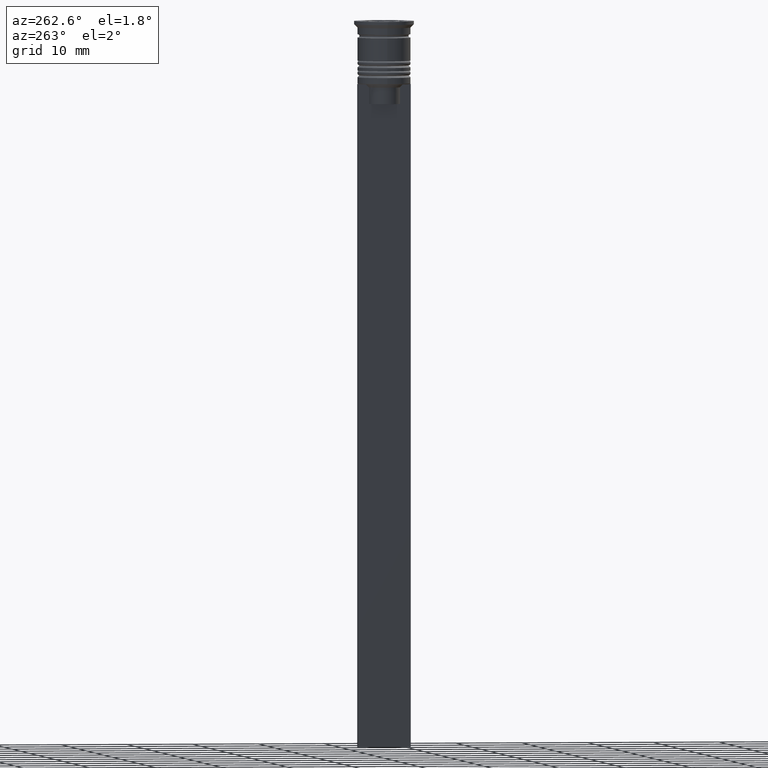
[diagram: clean part render]
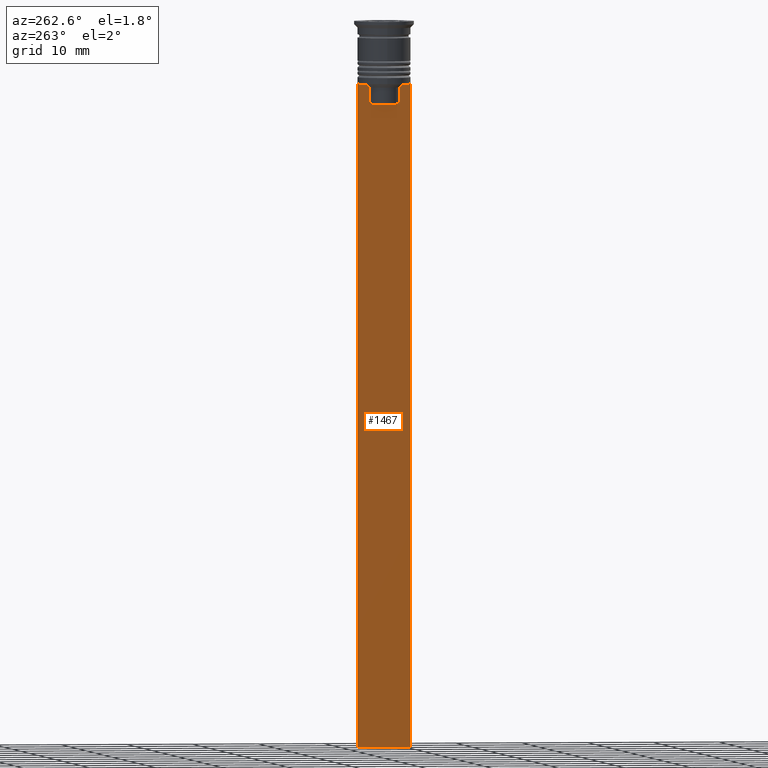
[diagram: same view with one face highlighted and labeled with its STEP entity id]
A machine part, auxiliary view. The second image highlights one B-rep face of the part: STEP entity #1467.
In plain terms, the highlighted planar face has unit normal (-1, 0, 0).
Its self-contained STEP definition (entity closure, byte-faithful):
#56 = CARTESIAN_POINT ( 'NONE',  ( -0.5000000000000000000, 2.517407211010871393, -9.833663366238582171 ) ) ;
#62 = EDGE_CURVE ( 'NONE', #1665, #465, #709, .T. ) ;
#87 = VERTEX_POINT ( 'NONE', #1300 ) ;
#122 = CARTESIAN_POINT ( 'NONE',  ( -0.5000000000000000000, -2.347338918861097135, -10.00000000000000000 ) ) ;
#142 = ORIENTED_EDGE ( 'NONE', *, *, #226, .F. ) ;
#157 = CARTESIAN_POINT ( 'NONE',  ( -0.5000000000000000000, -3.867815921162741422, -9.500000000000000000 ) ) ;
#162 = CARTESIAN_POINT ( 'NONE',  ( -0.5000000000000000000, 2.347338918861097135, -12.50000000000000000 ) ) ;
#193 = EDGE_LOOP ( 'NONE', ( #2430, #2476, #1920, #2488, #797, #1464, #1823, #1399, #1894, #2301, #2456, #142 ) ) ;
#204 = CARTESIAN_POINT ( 'NONE',  ( -0.5000000000000000000, -4.000000000000000000, -9.500000000000000000 ) ) ;
#226 = EDGE_CURVE ( 'NONE', #271, #1816, #2373, .T. ) ;
#235 = LINE ( 'NONE', #1626, #1183 ) ;
#247 = AXIS2_PLACEMENT_3D ( 'NONE', #903, #1303, #2078 ) ;
#271 = VERTEX_POINT ( 'NONE', #1484 ) ;
#272 = DIRECTION ( 'NONE',  ( 0.000000000000000000, -1.000000000000000000, 0.000000000000000000 ) ) ;
#298 = CARTESIAN_POINT ( 'NONE',  ( -0.5000000000000000000, -4.000000000000000000, -9.500000000000000000 ) ) ;
#318 = DIRECTION ( 'NONE',  ( 0.000000000000000000, -1.000000000000000000, 0.000000000000000000 ) ) ;
#389 = B_SPLINE_CURVE_WITH_KNOTS ( 'NONE', 3,
 ( #122, #2487, #1537, #1096 ),
 .UNSPECIFIED., .F., .F.,
 ( 4, 4 ),
 ( 0.01178336557230038641, 0.01249758354768160454 ),
 .UNSPECIFIED. ) ;
#397 = DIRECTION ( 'NONE',  ( -0.000000000000000000, -0.000000000000000000, 1.000000000000000000 ) ) ;
#416 = LINE ( 'NONE', #1358, #1154 ) ;
#424 = CARTESIAN_POINT ( 'NONE',  ( -0.5000000000000000000, 2.687094542495897631, -9.666938847453439010 ) ) ;
#441 = EDGE_CURVE ( 'NONE', #713, #662, #416, .T. ) ;
#465 = VERTEX_POINT ( 'NONE', #1370 ) ;
#491 = VECTOR ( 'NONE', #2493, 1000.000000000000000 ) ;
#552 = CARTESIAN_POINT ( 'NONE',  ( -0.5000000000000000000, -4.000000000000000000, -9.500000000000000000 ) ) ;
#564 = CARTESIAN_POINT ( 'NONE',  ( -0.5000000000000000000, -4.000000000000000000, -9.500000000000000000 ) ) ;
#568 = EDGE_CURVE ( 'NONE', #1245, #271, #885, .T. ) ;
#586 = CARTESIAN_POINT ( 'NONE',  ( -0.5000000000000000000, -2.347338918861097135, 0.000000000000000000 ) ) ;
#593 = CARTESIAN_POINT ( 'NONE',  ( -0.5000000000000000000, 2.856571371417138572, -9.500000000000000000 ) ) ;
#632 = EDGE_CURVE ( 'NONE', #662, #465, #1533, .T. ) ;
#662 = VERTEX_POINT ( 'NONE', #2312 ) ;
#665 = FACE_OUTER_BOUND ( 'NONE', #193, .T. ) ;
#704 = VECTOR ( 'NONE', #980, 1000.000000000000000 ) ;
#709 = LINE ( 'NONE', #1079, #982 ) ;
#713 = VERTEX_POINT ( 'NONE', #564 ) ;
#797 = ORIENTED_EDGE ( 'NONE', *, *, #632, .F. ) ;
#877 = PLANE ( 'NONE',  #247 ) ;
#885 = B_SPLINE_CURVE_WITH_KNOTS ( 'NONE', 3,
 ( #1983, #424, #56, #2383 ),
 .UNSPECIFIED., .F., .F.,
 ( 4, 4 ),
 ( 0.004956812174141195064, 0.005670477137898153989 ),
 .UNSPECIFIED. ) ;
#898 = EDGE_CURVE ( 'NONE', #1986, #968, #1564, .T. ) ;
#903 = CARTESIAN_POINT ( 'NONE',  ( -0.5000000000000000000, -4.000000000000000000, -1.437742251701450202 ) ) ;
#968 = VERTEX_POINT ( 'NONE', #2416 ) ;
#980 = DIRECTION ( 'NONE',  ( 0.000000000000000000, -1.000000000000000000, 0.000000000000000000 ) ) ;
#982 = VECTOR ( 'NONE', #2063, 1000.000000000000000 ) ;
#984 = VECTOR ( 'NONE', #2012, 1000.000000000000000 ) ;
#1079 = CARTESIAN_POINT ( 'NONE',  ( -0.5000000000000000000, 4.000000000000000000, -1.437742251701450202 ) ) ;
#1096 = CARTESIAN_POINT ( 'NONE',  ( -0.5000000000000000000, -2.856571371417138572, -9.500000000000000000 ) ) ;
#1154 = VECTOR ( 'NONE', #2537, 1000.000000000000000 ) ;
#1156 = LINE ( 'NONE', #1672, #1283 ) ;
#1169 = EDGE_CURVE ( 'NONE', #87, #1245, #1688, .T. ) ;
#1183 = VECTOR ( 'NONE', #272, 1000.000000000000000 ) ;
#1194 = EDGE_CURVE ( 'NONE', #2411, #2314, #1763, .T. ) ;
#1236 = CARTESIAN_POINT ( 'NONE',  ( -0.5000000000000000000, 2.347338918861097135, 0.000000000000000000 ) ) ;
#1245 = VERTEX_POINT ( 'NONE', #593 ) ;
#1283 = VECTOR ( 'NONE', #318, 1000.000000000000000 ) ;
#1300 = CARTESIAN_POINT ( 'NONE',  ( -0.5000000000000000000, 3.867815921162741422, -9.500000000000000000 ) ) ;
#1303 = DIRECTION ( 'NONE',  ( -1.000000000000000000, 0.000000000000000000, 0.000000000000000000 ) ) ;
#1321 = VECTOR ( 'NONE', #397, 1000.000000000000000 ) ;
#1358 = CARTESIAN_POINT ( 'NONE',  ( -0.5000000000000000000, -4.000000000000000000, -1.437742251701450202 ) ) ;
#1370 = CARTESIAN_POINT ( 'NONE',  ( -0.5000000000000000000, 4.000000000000000000, -109.5000000000000000 ) ) ;
#1380 = EDGE_CURVE ( 'NONE', #2314, #713, #2097, .T. ) ;
#1396 = VECTOR ( 'NONE', #2271, 1000.000000000000000 ) ;
#1399 = ORIENTED_EDGE ( 'NONE', *, *, #1194, .F. ) ;
#1464 = ORIENTED_EDGE ( 'NONE', *, *, #441, .F. ) ;
#1467 = ADVANCED_FACE ( 'NONE', ( #665 ), #877, .T. ) ;
#1484 = CARTESIAN_POINT ( 'NONE',  ( -0.5000000000000000000, 2.347338918861097135, -10.00000000000000000 ) ) ;
#1533 = LINE ( 'NONE', #1718, #491 ) ;
#1537 = CARTESIAN_POINT ( 'NONE',  ( -0.5000000000000000000, -2.687095498514037839, -9.666937905752043037 ) ) ;
#1564 = LINE ( 'NONE', #586, #1321 ) ;
#1626 = CARTESIAN_POINT ( 'NONE',  ( -0.5000000000000000000, 2.399999999999996803, -12.50000000000000000 ) ) ;
#1665 = VERTEX_POINT ( 'NONE', #2420 ) ;
#1672 = CARTESIAN_POINT ( 'NONE',  ( -0.5000000000000000000, -4.000000000000000000, -9.500000000000000000 ) ) ;
#1688 = LINE ( 'NONE', #552, #2372 ) ;
#1718 = CARTESIAN_POINT ( 'NONE',  ( -0.5000000000000000000, -4.000000000000000000, -109.5000000000000000 ) ) ;
#1729 = DIRECTION ( 'NONE',  ( 0.000000000000000000, -1.000000000000000000, 0.000000000000000000 ) ) ;
#1763 = LINE ( 'NONE', #204, #704 ) ;
#1816 = VERTEX_POINT ( 'NONE', #162 ) ;
#1823 = ORIENTED_EDGE ( 'NONE', *, *, #1380, .F. ) ;
#1894 = ORIENTED_EDGE ( 'NONE', *, *, #2211, .F. ) ;
#1920 = ORIENTED_EDGE ( 'NONE', *, *, #1927, .F. ) ;
#1927 = EDGE_CURVE ( 'NONE', #1665, #87, #1156, .T. ) ;
#1983 = CARTESIAN_POINT ( 'NONE',  ( -0.5000000000000000000, 2.856571371417138572, -9.500000000000000000 ) ) ;
#1986 = VERTEX_POINT ( 'NONE', #2342 ) ;
#2012 = DIRECTION ( 'NONE',  ( 0.000000000000000000, 0.000000000000000000, -1.000000000000000000 ) ) ;
#2063 = DIRECTION ( 'NONE',  ( 0.000000000000000000, 0.000000000000000000, -1.000000000000000000 ) ) ;
#2065 = EDGE_CURVE ( 'NONE', #1816, #1986, #235, .T. ) ;
#2078 = DIRECTION ( 'NONE',  ( 0.000000000000000000, 0.000000000000000000, 1.000000000000000000 ) ) ;
#2097 = LINE ( 'NONE', #298, #1396 ) ;
#2134 = CARTESIAN_POINT ( 'NONE',  ( -0.5000000000000000000, -2.856571371417138572, -9.500000000000000000 ) ) ;
#2211 = EDGE_CURVE ( 'NONE', #968, #2411, #389, .T. ) ;
#2271 = DIRECTION ( 'NONE',  ( 0.000000000000000000, -1.000000000000000000, 0.000000000000000000 ) ) ;
#2301 = ORIENTED_EDGE ( 'NONE', *, *, #898, .F. ) ;
#2312 = CARTESIAN_POINT ( 'NONE',  ( -0.5000000000000000000, -4.000000000000000000, -109.5000000000000000 ) ) ;
#2314 = VERTEX_POINT ( 'NONE', #157 ) ;
#2342 = CARTESIAN_POINT ( 'NONE',  ( -0.5000000000000000000, -2.347338918861097135, -12.50000000000000000 ) ) ;
#2372 = VECTOR ( 'NONE', #1729, 1000.000000000000000 ) ;
#2373 = LINE ( 'NONE', #1236, #984 ) ;
#2383 = CARTESIAN_POINT ( 'NONE',  ( -0.5000000000000000000, 2.347338918861097135, -10.00000000000000000 ) ) ;
#2411 = VERTEX_POINT ( 'NONE', #2134 ) ;
#2416 = CARTESIAN_POINT ( 'NONE',  ( -0.5000000000000000000, -2.347338918861097135, -10.00000000000000000 ) ) ;
#2420 = CARTESIAN_POINT ( 'NONE',  ( -0.5000000000000000000, 4.000000000000000000, -9.500000000000000000 ) ) ;
#2430 = ORIENTED_EDGE ( 'NONE', *, *, #568, .F. ) ;
#2456 = ORIENTED_EDGE ( 'NONE', *, *, #2065, .F. ) ;
#2476 = ORIENTED_EDGE ( 'NONE', *, *, #1169, .F. ) ;
#2487 = CARTESIAN_POINT ( 'NONE',  ( -0.5000000000000000000, -2.517408374291112416, -9.833662228483172285 ) ) ;
#2488 = ORIENTED_EDGE ( 'NONE', *, *, #62, .T. ) ;
#2493 = DIRECTION ( 'NONE',  ( 0.000000000000000000, 1.000000000000000000, 0.000000000000000000 ) ) ;
#2537 = DIRECTION ( 'NONE',  ( 0.000000000000000000, 0.000000000000000000, -1.000000000000000000 ) ) ;